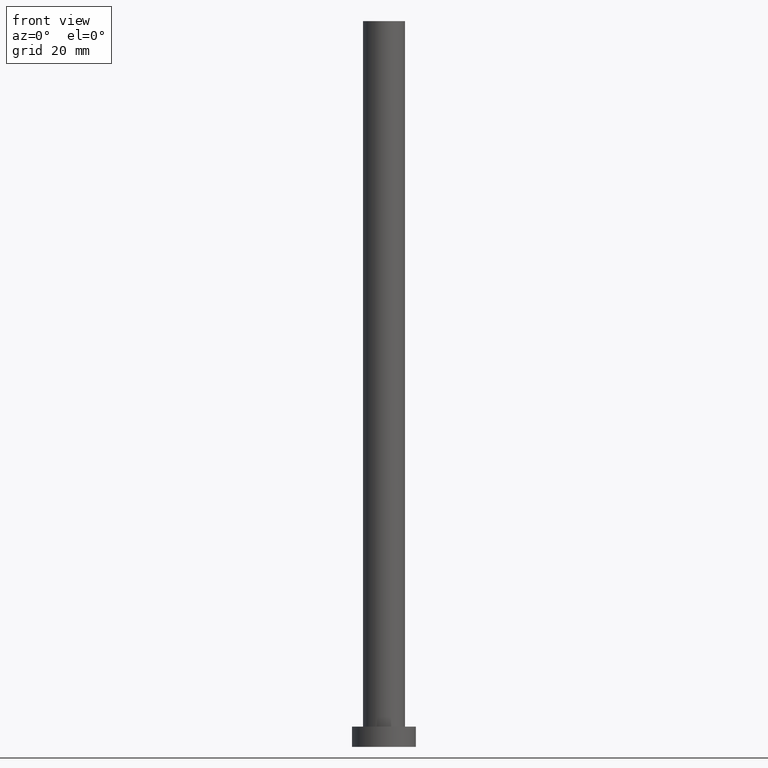
[diagram: clean part render]
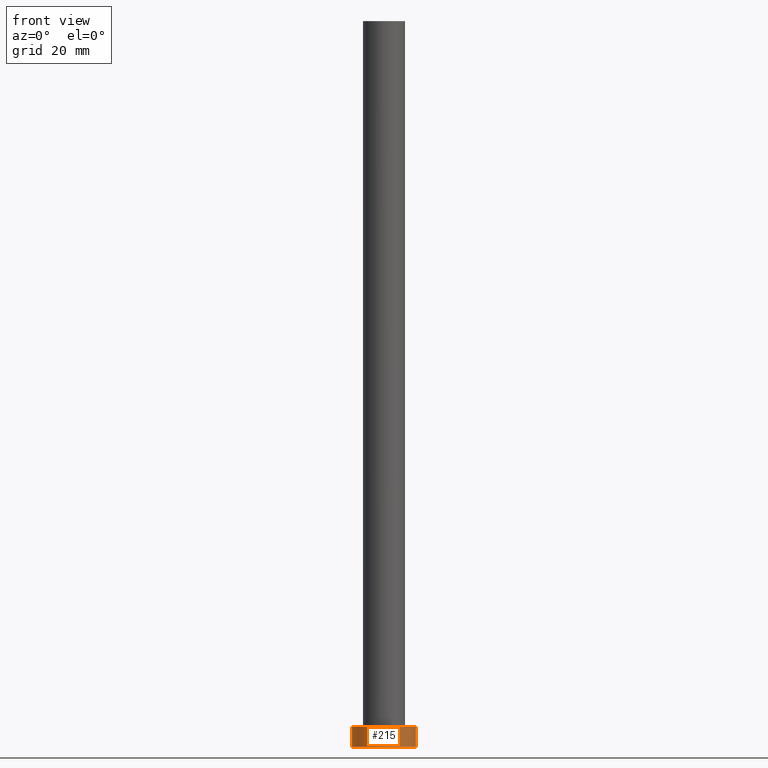
[diagram: same view with one face highlighted and labeled with its STEP entity id]
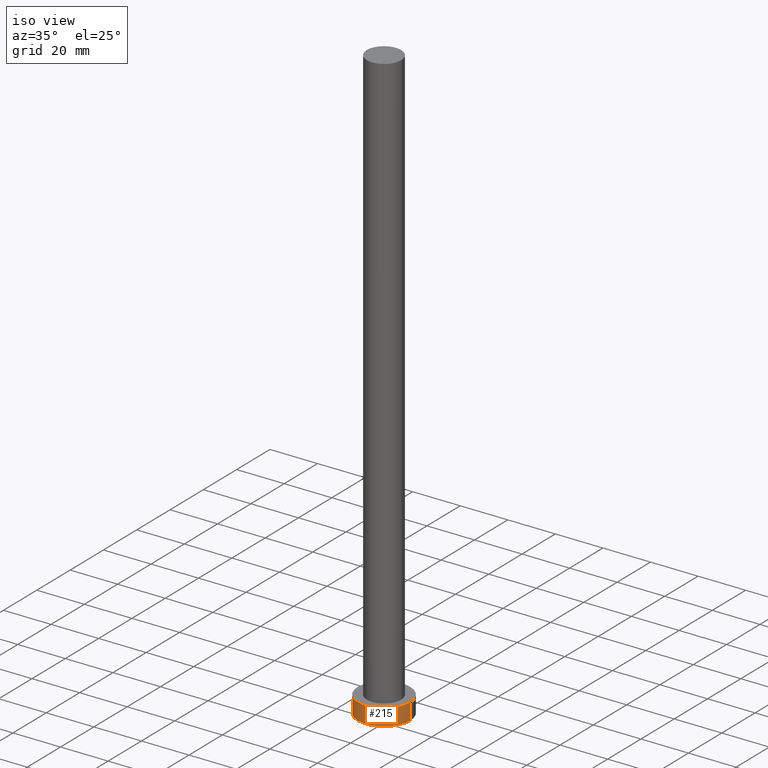
[diagram: same view with one face highlighted and labeled with its STEP entity id]
A machine part, front view. The second image highlights one B-rep face of the part: STEP entity #215.
A second angle (iso view) of the same face is appended — the face is thin or edge-on in the first view.
In plain terms, the highlighted cylindrical surface (edge-blend (fillet) strip) has radius 11 mm, axis along (-0, -0, -1).
Its self-contained STEP definition (entity closure, byte-faithful):
#8 = CIRCLE ( 'NONE', #27, 11.00000000000000000 ) ;
#20 = CARTESIAN_POINT ( 'NONE',  ( 11.00000000000000000, 1.347111479062088405E-15, 0.000000000000000000 ) ) ;
#27 = AXIS2_PLACEMENT_3D ( 'NONE', #99, #255, #63 ) ;
#32 = CARTESIAN_POINT ( 'NONE',  ( 0.000000000000000000, 0.000000000000000000, 7.000000000000000000 ) ) ;
#33 = DIRECTION ( 'NONE',  ( -1.000000000000000000, 0.000000000000000000, 0.000000000000000000 ) ) ;
#53 = EDGE_CURVE ( 'NONE', #146, #71, #122, .T. ) ;
#61 = AXIS2_PLACEMENT_3D ( 'NONE', #32, #183, #33 ) ;
#63 = DIRECTION ( 'NONE',  ( 1.000000000000000000, 0.000000000000000000, 0.000000000000000000 ) ) ;
#71 = VERTEX_POINT ( 'NONE', #20 ) ;
#74 = DIRECTION ( 'NONE',  ( 0.000000000000000000, 0.000000000000000000, 1.000000000000000000 ) ) ;
#77 = EDGE_CURVE ( 'NONE', #208, #71, #8, .T. ) ;
#78 = CIRCLE ( 'NONE', #139, 11.00000000000000000 ) ;
#79 = CARTESIAN_POINT ( 'NONE',  ( -11.00000000000000000, 0.000000000000000000, 7.000000000000000000 ) ) ;
#83 = DIRECTION ( 'NONE',  ( -0.000000000000000000, -0.000000000000000000, -1.000000000000000000 ) ) ;
#99 = CARTESIAN_POINT ( 'NONE',  ( 0.000000000000000000, 0.000000000000000000, 0.000000000000000000 ) ) ;
#107 = CYLINDRICAL_SURFACE ( 'NONE', #61, 11.00000000000000000 ) ;
#109 = CARTESIAN_POINT ( 'NONE',  ( -11.00000000000000000, 0.000000000000000000, 0.000000000000000000 ) ) ;
#113 = ORIENTED_EDGE ( 'NONE', *, *, #181, .F. ) ;
#117 = DIRECTION ( 'NONE',  ( -0.000000000000000000, -0.000000000000000000, -1.000000000000000000 ) ) ;
#122 = LINE ( 'NONE', #235, #254 ) ;
#127 = CARTESIAN_POINT ( 'NONE',  ( 0.000000000000000000, 0.000000000000000000, 7.000000000000000000 ) ) ;
#133 = VERTEX_POINT ( 'NONE', #171 ) ;
#139 = AXIS2_PLACEMENT_3D ( 'NONE', #127, #74, #185 ) ;
#144 = ORIENTED_EDGE ( 'NONE', *, *, #154, .T. ) ;
#146 = VERTEX_POINT ( 'NONE', #172 ) ;
#154 = EDGE_CURVE ( 'NONE', #133, #208, #252, .T. ) ;
#171 = CARTESIAN_POINT ( 'NONE',  ( -11.00000000000000000, 0.000000000000000000, 7.000000000000000000 ) ) ;
#172 = CARTESIAN_POINT ( 'NONE',  ( 11.00000000000000000, 1.347111479062088405E-15, 7.000000000000000000 ) ) ;
#181 = EDGE_CURVE ( 'NONE', #133, #146, #78, .T. ) ;
#183 = DIRECTION ( 'NONE',  ( -0.000000000000000000, -0.000000000000000000, -1.000000000000000000 ) ) ;
#185 = DIRECTION ( 'NONE',  ( 1.000000000000000000, 0.000000000000000000, 0.000000000000000000 ) ) ;
#204 = FACE_OUTER_BOUND ( 'NONE', #207, .T. ) ;
#207 = EDGE_LOOP ( 'NONE', ( #230, #113, #144, #251 ) ) ;
#208 = VERTEX_POINT ( 'NONE', #109 ) ;
#213 = VECTOR ( 'NONE', #83, 1000.000000000000000 ) ;
#215 = ADVANCED_FACE ( 'NONE', ( #204 ), #107, .T. ) ;
#230 = ORIENTED_EDGE ( 'NONE', *, *, #53, .F. ) ;
#235 = CARTESIAN_POINT ( 'NONE',  ( 11.00000000000000000, 1.347111479062088405E-15, 7.000000000000000000 ) ) ;
#251 = ORIENTED_EDGE ( 'NONE', *, *, #77, .T. ) ;
#252 = LINE ( 'NONE', #79, #213 ) ;
#254 = VECTOR ( 'NONE', #117, 1000.000000000000000 ) ;
#255 = DIRECTION ( 'NONE',  ( 0.000000000000000000, 0.000000000000000000, 1.000000000000000000 ) ) ;